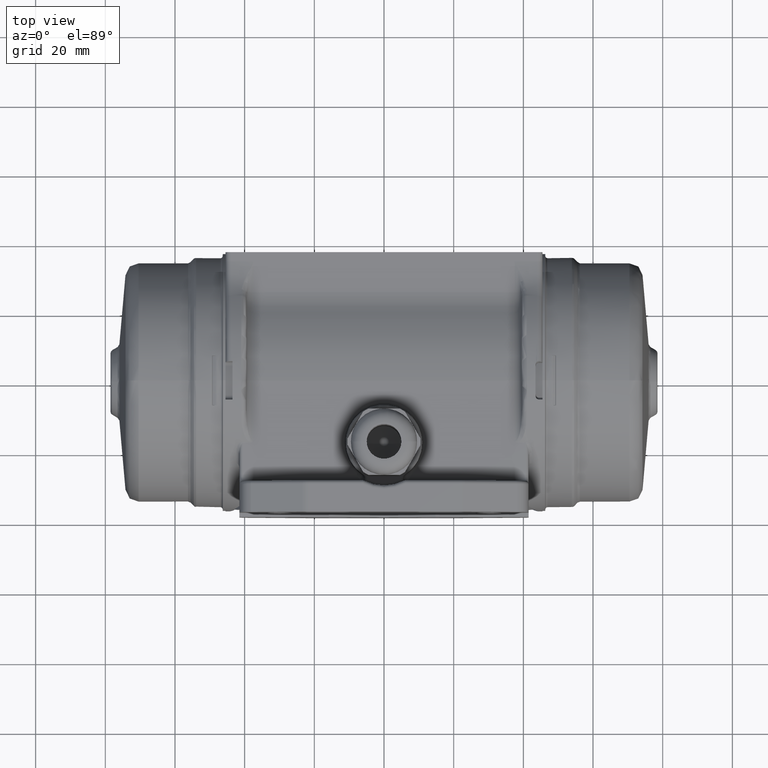
[diagram: clean part render]
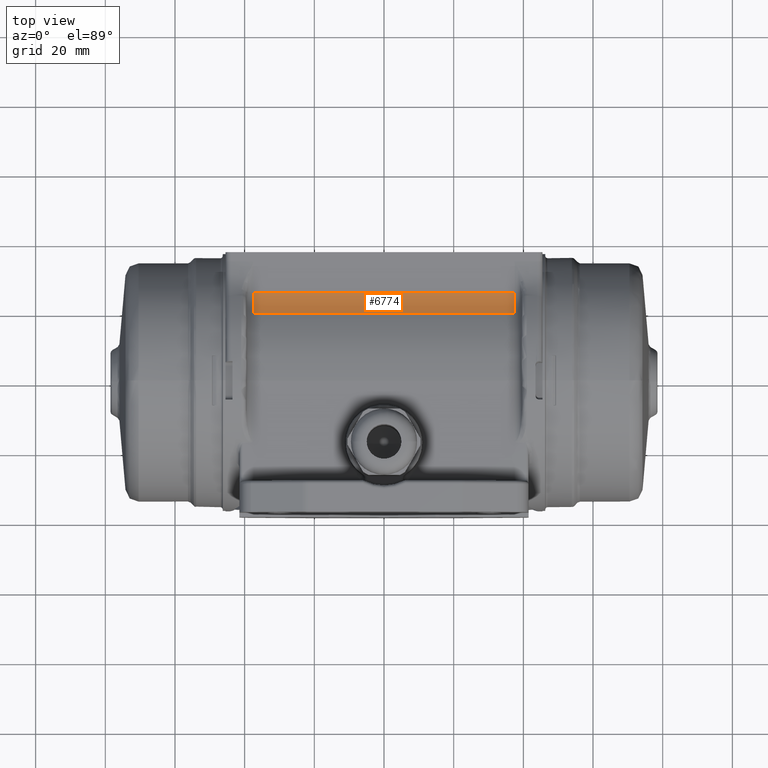
[diagram: same view with one face highlighted and labeled with its STEP entity id]
A machine part, top view. The second image highlights one B-rep face of the part: STEP entity #6774.
In plain terms, the highlighted cylindrical surface (edge-blend (fillet) strip) has radius 10 mm, axis along (-1, 0, 0).
Its self-contained STEP definition (entity closure, byte-faithful):
#4829 = CARTESIAN_POINT ( 'NONE',  ( -37.50000000000000000, 25.50000000000000000, 24.00000000000000000 ) ) ;
#5717 = CARTESIAN_POINT ( 'NONE',  ( 37.50000000000000000, 19.50000000000000000, 26.00000000000000000 ) ) ;
#5739 = DIRECTION ( 'NONE',  ( 0.0000000000000000000, 0.0000000000000000000, -1.000000000000000000 ) ) ;
#5740 = AXIS2_PLACEMENT_3D ( 'NONE', #5753, #5761, #5739 ) ;
#5742 = CIRCLE ( 'NONE', #5740, 10.00000000000000200 ) ;
#5753 = CARTESIAN_POINT ( 'NONE',  ( 37.50000000000000000, 25.50000000000000000, 34.00000000000000000 ) ) ;
#5761 = DIRECTION ( 'NONE',  ( 1.000000000000000000, 0.0000000000000000000, 0.0000000000000000000 ) ) ;
#6759 = EDGE_LOOP ( 'NONE', ( #13026, #13022, #13017, #13019 ) ) ;
#6774 = ADVANCED_FACE ( 'NONE', ( #24855 ), #24846, .F. ) ;
#13017 = ORIENTED_EDGE ( 'NONE', *, *, #13030, .F. ) ;
#13019 = ORIENTED_EDGE ( 'NONE', *, *, #38019, .T. ) ;
#13022 = ORIENTED_EDGE ( 'NONE', *, *, #19950, .T. ) ;
#13026 = ORIENTED_EDGE ( 'NONE', *, *, #38921, .F. ) ;
#13030 = EDGE_CURVE ( 'NONE', #37997, #35614, #33242, .T. ) ;
#19950 = EDGE_CURVE ( 'NONE', #37563, #35614, #26843, .T. ) ;
#24702 = DIRECTION ( 'NONE',  ( -1.000000000000000000, 0.0000000000000000000, 0.0000000000000000000 ) ) ;
#24739 = AXIS2_PLACEMENT_3D ( 'NONE', #24838, #24702, #24857 ) ;
#24838 = CARTESIAN_POINT ( 'NONE',  ( 58.00000000000000000, 25.50000000000000000, 34.00000000000000000 ) ) ;
#24846 = CYLINDRICAL_SURFACE ( 'NONE', #24739, 10.00000000000000200 ) ;
#24855 = FACE_OUTER_BOUND ( 'NONE', #6759, .T. ) ;
#24857 = DIRECTION ( 'NONE',  ( 0.0000000000000000000, 0.0000000000000000000, 1.000000000000000000 ) ) ;
#26831 = DIRECTION ( 'NONE',  ( 0.0000000000000000000, 0.0000000000000000000, -1.000000000000000000 ) ) ;
#26832 = DIRECTION ( 'NONE',  ( -1.000000000000000000, -0.0000000000000000000, -0.0000000000000000000 ) ) ;
#26833 = CARTESIAN_POINT ( 'NONE',  ( -37.50000000000000000, 25.50000000000000000, 34.00000000000000000 ) ) ;
#26838 = AXIS2_PLACEMENT_3D ( 'NONE', #26833, #26832, #26831 ) ;
#26843 = CIRCLE ( 'NONE', #26838, 10.00000000000000200 ) ;
#33235 = DIRECTION ( 'NONE',  ( -1.000000000000000000, 0.0000000000000000000, 0.0000000000000000000 ) ) ;
#33237 = VECTOR ( 'NONE', #33235, 1000.000000000000000 ) ;
#33239 = CARTESIAN_POINT ( 'NONE',  ( 58.00000000000000000, 19.50000000000000000, 26.00000000000000000 ) ) ;
#33242 = LINE ( 'NONE', #33239, #33237 ) ;
#35614 = VERTEX_POINT ( 'NONE', #36895 ) ;
#35620 = VERTEX_POINT ( 'NONE', #36900 ) ;
#36895 = CARTESIAN_POINT ( 'NONE',  ( -37.50000000000000000, 19.50000000000000000, 26.00000000000000000 ) ) ;
#36900 = CARTESIAN_POINT ( 'NONE',  ( 37.50000000000000000, 25.50000000000000000, 24.00000000000000000 ) ) ;
#37563 = VERTEX_POINT ( 'NONE', #4829 ) ;
#37997 = VERTEX_POINT ( 'NONE', #5717 ) ;
#38019 = EDGE_CURVE ( 'NONE', #37997, #35620, #5742, .T. ) ;
#38559 = DIRECTION ( 'NONE',  ( 1.000000000000000000, 0.0000000000000000000, 0.0000000000000000000 ) ) ;
#38560 = VECTOR ( 'NONE', #38559, 1000.000000000000000 ) ;
#38561 = CARTESIAN_POINT ( 'NONE',  ( 39.50000000000000000, 25.50000000000000000, 24.00000000000000000 ) ) ;
#38562 = LINE ( 'NONE', #38561, #38560 ) ;
#38921 = EDGE_CURVE ( 'NONE', #37563, #35620, #38562, .T. ) ;